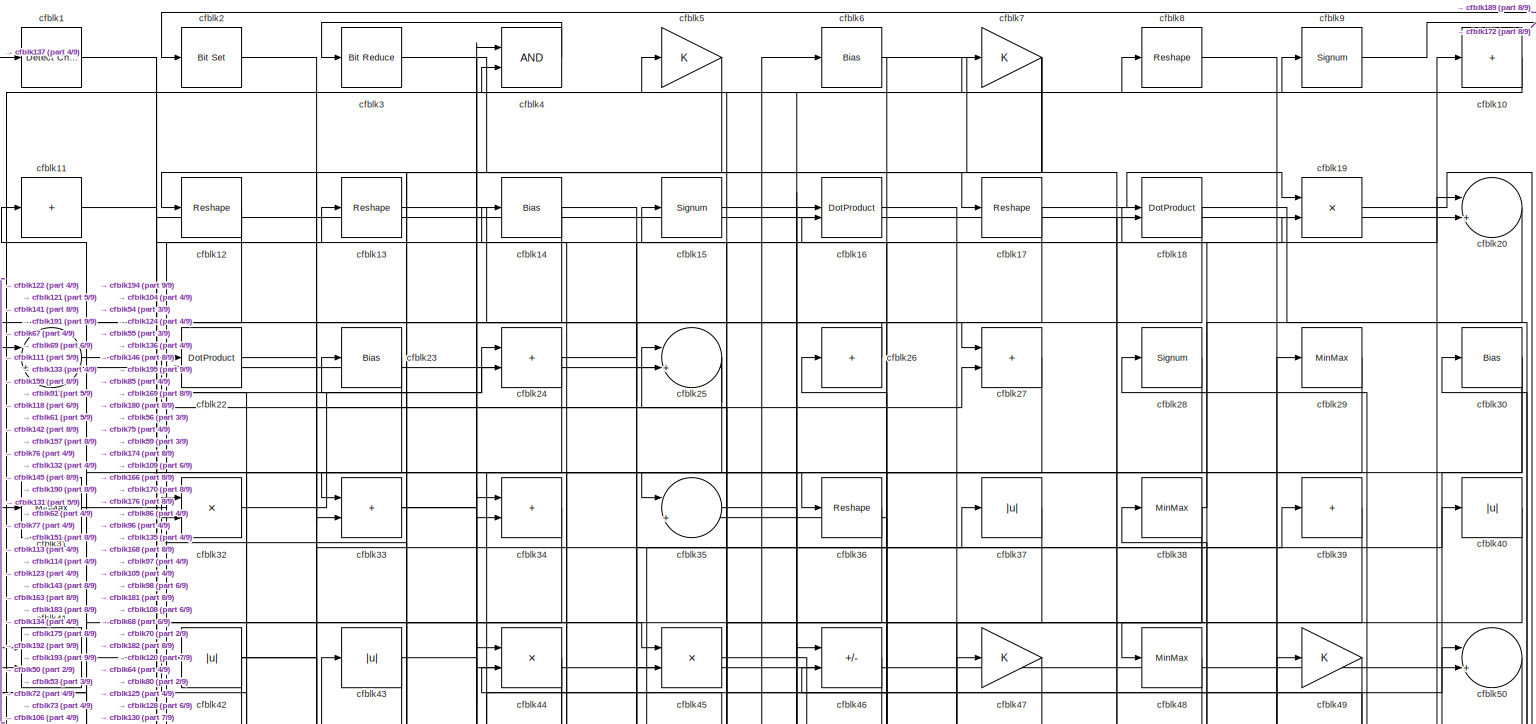
[diagram: root canvas - part 1/9, full width, top band]
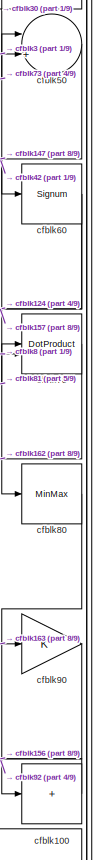
[diagram: root canvas - part 2/9, middle right region]
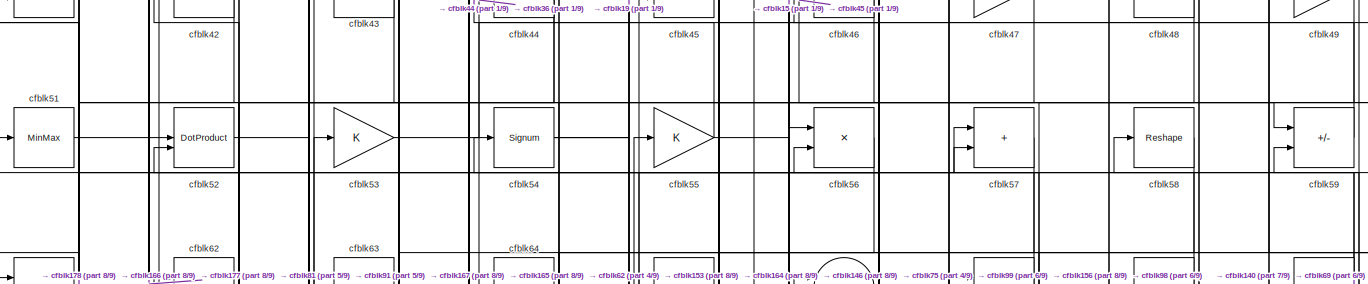
[diagram: root canvas - part 3/9, full width, top band]
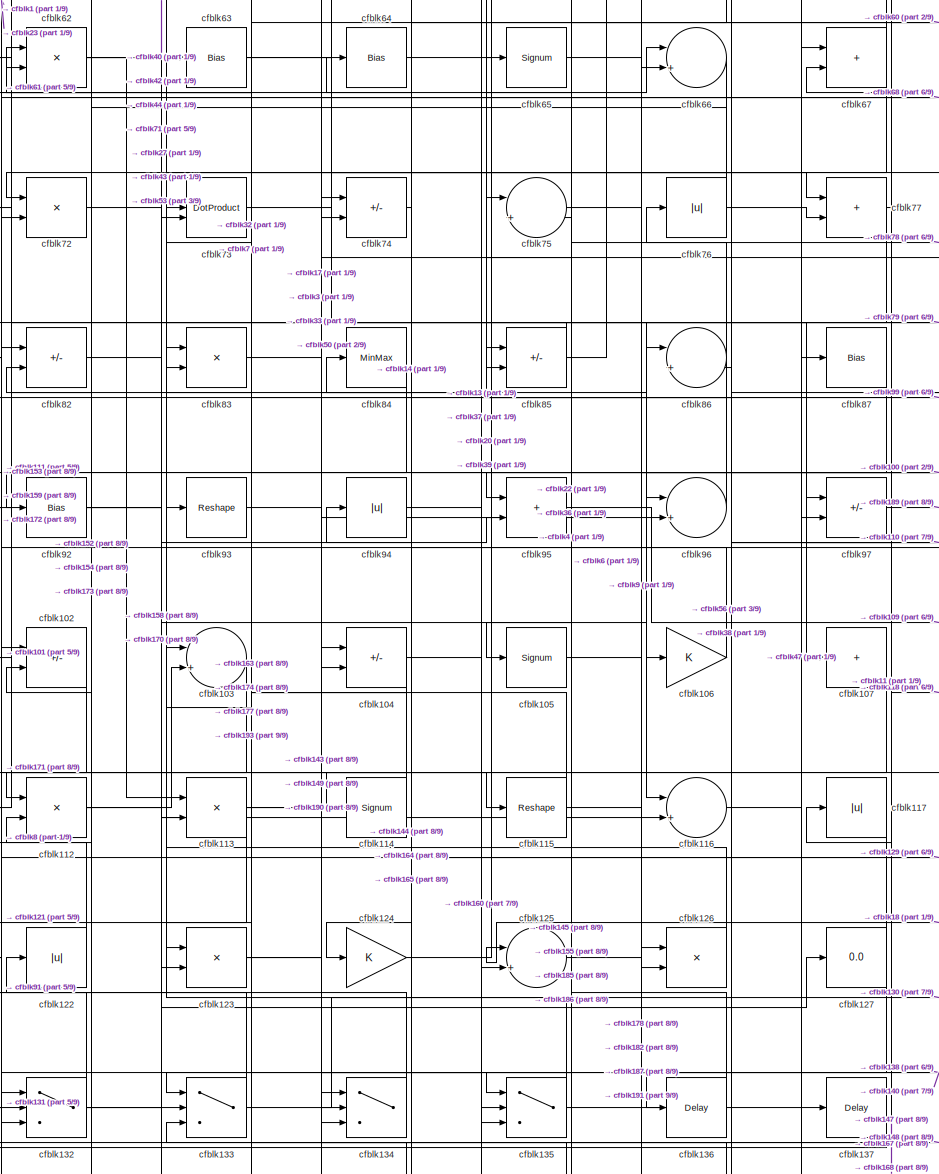
[diagram: root canvas - part 4/9, central region]
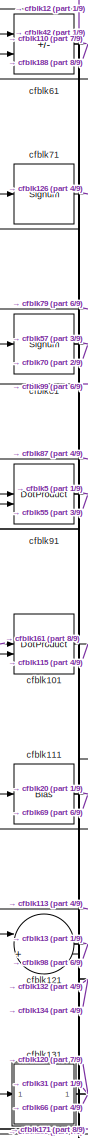
[diagram: root canvas - part 5/9, middle left region]
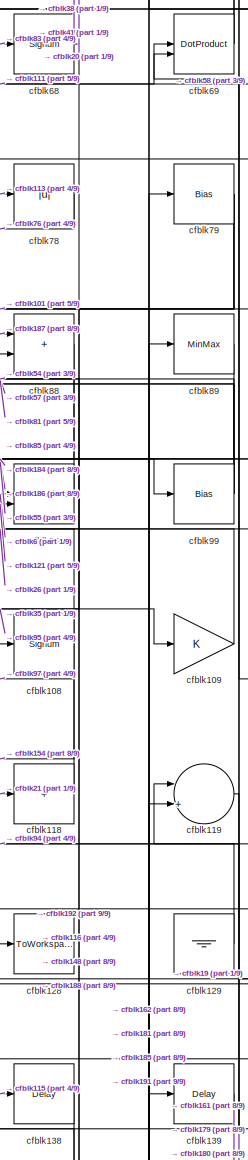
[diagram: root canvas - part 6/9, middle right region]
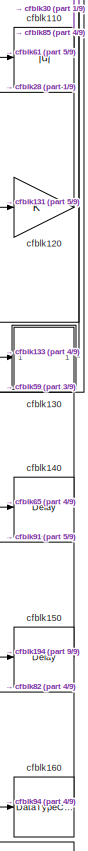
[diagram: root canvas - part 7/9, middle right region]
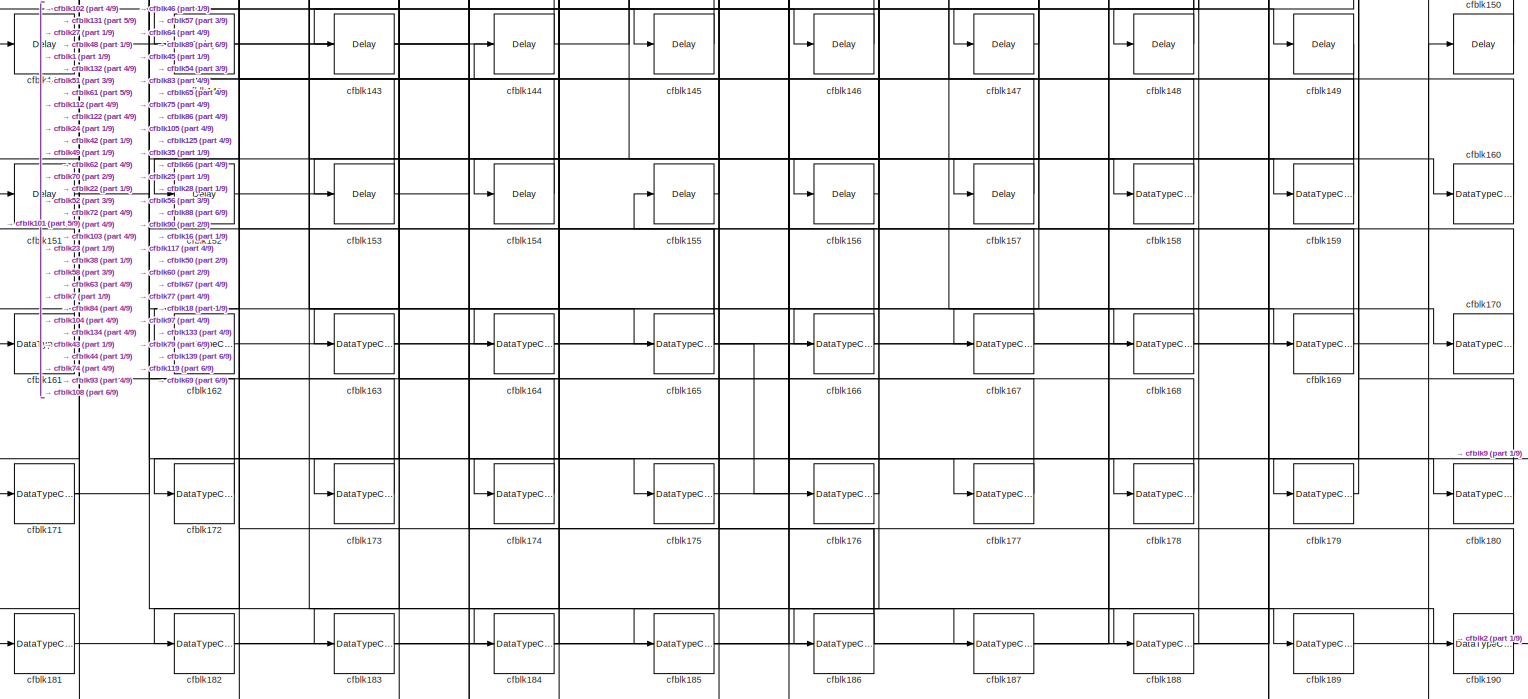
[diagram: root canvas - part 8/9, full width, bottom band]
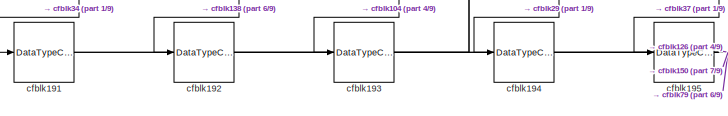
[diagram: root canvas - part 9/9, bottom left region]
MODEL slx_b00398de65a6
KIND model
CONFIG AbsTol = auto
CONFIG EnableMultiTasking = off
CONFIG FixedStep = auto
CONFIG MaxStep = auto
CONFIG MinStep = auto
CONFIG RelTol = 1e-3
CONFIG SampleTimeConstraint = Unconstrained
CONFIG SolverName = VariableStepAuto
CONFIG StartTime = 0.0
CONFIG StopTime = 10.0
BLOCK [Reference] cfblk1  REF=simulink/Logic and Bit
Operations/Detect
Change
  LibrarySourceBlock = hdlsllib/Logic and Bit\nOperations/Detect\nChange
  SourceBlock = simulink/Logic and Bit\nOperations/Detect\nChange
  SourceType = Detect Change
BLOCK [Sum] cfblk10
  IconShape = rectangular
  Inputs = +
BLOCK [Sum] cfblk100
  IconShape = rectangular
  Inputs = +
BLOCK [DotProduct] cfblk101
  OutDataTypeStr = Inherit: Inherit via internal rule
BLOCK [Sum] cfblk102
  IconShape = rectangular
  Inputs = +-
BLOCK [Sum] cfblk103
  Inputs = |++
BLOCK [Sum] cfblk104
  IconShape = rectangular
  Inputs = +-
BLOCK [Signum] cfblk105
BLOCK [Gain] cfblk106
BLOCK [Sum] cfblk107
  IconShape = rectangular
  Inputs = +
BLOCK [Signum] cfblk108
BLOCK [Gain] cfblk109
BLOCK [Sum] cfblk11
  IconShape = rectangular
  Inputs = +
BLOCK [Abs] cfblk110
  SaturateOnIntegerOverflow = off
BLOCK [Bias] cfblk111
  Bias = 0.0
  SaturateOnIntegerOverflow = off
BLOCK [Product] cfblk112
  Inputs = */
  RndMeth = Zero
  SaturateOnIntegerOverflow = on
BLOCK [Product] cfblk113
  Inputs = */
  RndMeth = Zero
  SaturateOnIntegerOverflow = on
BLOCK [Signum] cfblk114
BLOCK [Reshape] cfblk115
BLOCK [Sum] cfblk116
  Inputs = |++
BLOCK [Abs] cfblk117
  SaturateOnIntegerOverflow = off
BLOCK [Sum] cfblk118
  IconShape = rectangular
  Inputs = +
BLOCK [Sum] cfblk119
  Inputs = |++
BLOCK [Reshape] cfblk12
BLOCK [Gain] cfblk120
BLOCK [Sum] cfblk121
  Inputs = |++
BLOCK [Abs] cfblk122
  SaturateOnIntegerOverflow = off
BLOCK [Product] cfblk123
  Inputs = */
  RndMeth = Zero
  SaturateOnIntegerOverflow = on
BLOCK [Gain] cfblk124
BLOCK [Sum] cfblk125
  Inputs = |++
BLOCK [Product] cfblk126
  Inputs = */
  RndMeth = Zero
  SaturateOnIntegerOverflow = on
BLOCK [Display] cfblk127
  Decimation = 1
BLOCK [ToWorkspace] cfblk128
  MaxDataPoints = inf
  SampleTime = -1
  SaveFormat = Timeseries
  VariableName = simout
BLOCK [Ground] cfblk129
BLOCK [Reshape] cfblk13
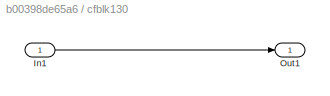
BLOCK [SubSystem] cfblk130
  LibrarySourceBlock = hdlsllib/Ports &\nSubsystems/Subsystem
BLOCK [Inport] cfblk130/In1
BLOCK [Outport] cfblk130/Out1
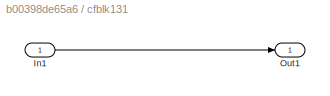
BLOCK [SubSystem] cfblk131
  LibrarySourceBlock = hdlsllib/Ports &\nSubsystems/Subsystem
BLOCK [Inport] cfblk131/In1
BLOCK [Outport] cfblk131/Out1
BLOCK [Switch] cfblk132
  InputSameDT = off
  SaturateOnIntegerOverflow = off
BLOCK [Switch] cfblk133
  InputSameDT = off
  SaturateOnIntegerOverflow = off
BLOCK [Switch] cfblk134
  InputSameDT = off
  SaturateOnIntegerOverflow = off
BLOCK [Switch] cfblk135
  InputSameDT = off
  SaturateOnIntegerOverflow = off
BLOCK [Delay] cfblk136
  InputPortMap = u0
  SampleTime = 1
BLOCK [Delay] cfblk137
  InputPortMap = u0
  SampleTime = 1
BLOCK [Delay] cfblk138
  InputPortMap = u0
  SampleTime = 1
BLOCK [Delay] cfblk139
  InputPortMap = u0
  SampleTime = 1
BLOCK [Bias] cfblk14
  Bias = 0.0
  SaturateOnIntegerOverflow = off
BLOCK [Delay] cfblk140
  InputPortMap = u0
  SampleTime = 1
BLOCK [Delay] cfblk141
  InputPortMap = u0
  SampleTime = 1
BLOCK [Delay] cfblk142
  InputPortMap = u0
  SampleTime = 1
BLOCK [Delay] cfblk143
  InputPortMap = u0
  SampleTime = 1
BLOCK [Delay] cfblk144
  InputPortMap = u0
  SampleTime = 1
BLOCK [Delay] cfblk145
  InputPortMap = u0
  SampleTime = 1
BLOCK [Delay] cfblk146
  InputPortMap = u0
  SampleTime = 1
BLOCK [Delay] cfblk147
  InputPortMap = u0
  SampleTime = 1
BLOCK [Delay] cfblk148
  InputPortMap = u0
  SampleTime = 1
BLOCK [Delay] cfblk149
  InputPortMap = u0
  SampleTime = 1
BLOCK [Signum] cfblk15
BLOCK [Delay] cfblk150
  InputPortMap = u0
  SampleTime = 1
BLOCK [Delay] cfblk151
  InputPortMap = u0
  SampleTime = 1
BLOCK [Delay] cfblk152
  InputPortMap = u0
  SampleTime = 1
BLOCK [Delay] cfblk153
  InputPortMap = u0
  SampleTime = 1
BLOCK [Delay] cfblk154
  InputPortMap = u0
  SampleTime = 1
BLOCK [Delay] cfblk155
  InputPortMap = u0
  SampleTime = 1
BLOCK [Delay] cfblk156
  InputPortMap = u0
  SampleTime = 1
BLOCK [Delay] cfblk157
  InputPortMap = u0
  SampleTime = 1
BLOCK [DataTypeConversion] cfblk158
  OutDataTypeStr = uint8
  RndMeth = Floor
  SaturateOnIntegerOverflow = off
BLOCK [DataTypeConversion] cfblk159
  OutDataTypeStr = uint8
  RndMeth = Floor
  SaturateOnIntegerOverflow = off
BLOCK [DotProduct] cfblk16
  OutDataTypeStr = Inherit: Inherit via internal rule
BLOCK [DataTypeConversion] cfblk160
  OutDataTypeStr = uint8
  RndMeth = Floor
  SaturateOnIntegerOverflow = off
BLOCK [DataTypeConversion] cfblk161
  OutDataTypeStr = uint8
  RndMeth = Floor
  SaturateOnIntegerOverflow = off
BLOCK [DataTypeConversion] cfblk162
  OutDataTypeStr = uint8
  RndMeth = Floor
  SaturateOnIntegerOverflow = off
BLOCK [DataTypeConversion] cfblk163
  RndMeth = Floor
  SaturateOnIntegerOverflow = off
BLOCK [DataTypeConversion] cfblk164
  OutDataTypeStr = uint8
  RndMeth = Floor
  SaturateOnIntegerOverflow = off
BLOCK [DataTypeConversion] cfblk165
  RndMeth = Floor
  SaturateOnIntegerOverflow = off
BLOCK [DataTypeConversion] cfblk166
  OutDataTypeStr = uint8
  RndMeth = Floor
  SaturateOnIntegerOverflow = off
BLOCK [DataTypeConversion] cfblk167
  OutDataTypeStr = uint8
  RndMeth = Floor
  SaturateOnIntegerOverflow = off
BLOCK [DataTypeConversion] cfblk168
  OutDataTypeStr = uint8
  RndMeth = Floor
  SaturateOnIntegerOverflow = off
BLOCK [DataTypeConversion] cfblk169
  OutDataTypeStr = uint8
  RndMeth = Floor
  SaturateOnIntegerOverflow = off
BLOCK [Reshape] cfblk17
BLOCK [DataTypeConversion] cfblk170
  OutDataTypeStr = uint8
  RndMeth = Floor
  SaturateOnIntegerOverflow = off
BLOCK [DataTypeConversion] cfblk171
  RndMeth = Floor
  SaturateOnIntegerOverflow = off
BLOCK [DataTypeConversion] cfblk172
  OutDataTypeStr = uint8
  RndMeth = Floor
  SaturateOnIntegerOverflow = off
BLOCK [DataTypeConversion] cfblk173
  OutDataTypeStr = uint8
  RndMeth = Floor
  SaturateOnIntegerOverflow = off
BLOCK [DataTypeConversion] cfblk174
  OutDataTypeStr = uint8
  RndMeth = Floor
  SaturateOnIntegerOverflow = off
BLOCK [DataTypeConversion] cfblk175
  OutDataTypeStr = uint8
  RndMeth = Floor
  SaturateOnIntegerOverflow = off
BLOCK [DataTypeConversion] cfblk176
  OutDataTypeStr = uint8
  RndMeth = Floor
  SaturateOnIntegerOverflow = off
BLOCK [DataTypeConversion] cfblk177
  OutDataTypeStr = uint8
  RndMeth = Floor
  SaturateOnIntegerOverflow = off
BLOCK [DataTypeConversion] cfblk178
  OutDataTypeStr = uint8
  RndMeth = Floor
  SaturateOnIntegerOverflow = off
BLOCK [DataTypeConversion] cfblk179
  OutDataTypeStr = uint8
  RndMeth = Floor
  SaturateOnIntegerOverflow = off
BLOCK [DotProduct] cfblk18
  OutDataTypeStr = Inherit: Inherit via internal rule
BLOCK [DataTypeConversion] cfblk180
  OutDataTypeStr = uint8
  RndMeth = Floor
  SaturateOnIntegerOverflow = off
BLOCK [DataTypeConversion] cfblk181
  OutDataTypeStr = uint8
  RndMeth = Floor
  SaturateOnIntegerOverflow = off
BLOCK [DataTypeConversion] cfblk182
  RndMeth = Floor
  SaturateOnIntegerOverflow = off
BLOCK [DataTypeConversion] cfblk183
  OutDataTypeStr = uint8
  RndMeth = Floor
  SaturateOnIntegerOverflow = off
BLOCK [DataTypeConversion] cfblk184
  OutDataTypeStr = uint8
  RndMeth = Floor
  SaturateOnIntegerOverflow = off
BLOCK [DataTypeConversion] cfblk185
  OutDataTypeStr = uint8
  RndMeth = Floor
  SaturateOnIntegerOverflow = off
BLOCK [DataTypeConversion] cfblk186
  RndMeth = Floor
  SaturateOnIntegerOverflow = off
BLOCK [DataTypeConversion] cfblk187
  OutDataTypeStr = uint8
  RndMeth = Floor
  SaturateOnIntegerOverflow = off
BLOCK [DataTypeConversion] cfblk188
  OutDataTypeStr = uint8
  RndMeth = Floor
  SaturateOnIntegerOverflow = off
BLOCK [DataTypeConversion] cfblk189
  OutDataTypeStr = boolean
  RndMeth = Floor
  SaturateOnIntegerOverflow = off
BLOCK [Product] cfblk19
  Inputs = */
  RndMeth = Zero
  SaturateOnIntegerOverflow = on
BLOCK [DataTypeConversion] cfblk190
  OutDataTypeStr = uint8
  RndMeth = Floor
  SaturateOnIntegerOverflow = off
BLOCK [DataTypeConversion] cfblk191
  RndMeth = Floor
  SaturateOnIntegerOverflow = off
BLOCK [DataTypeConversion] cfblk192
  OutDataTypeStr = uint8
  RndMeth = Floor
  SaturateOnIntegerOverflow = off
BLOCK [DataTypeConversion] cfblk193
  OutDataTypeStr = uint8
  RndMeth = Floor
  SaturateOnIntegerOverflow = off
BLOCK [DataTypeConversion] cfblk194
  OutDataTypeStr = uint8
  RndMeth = Floor
  SaturateOnIntegerOverflow = off
BLOCK [DataTypeConversion] cfblk195
  OutDataTypeStr = uint8
  RndMeth = Floor
  SaturateOnIntegerOverflow = off
BLOCK [Reference] cfblk2  REF=simulink/Logic and Bit
Operations/Bit Set
  LibrarySourceBlock = hdlsllib/Logic and Bit\nOperations/Bit Set
  SourceBlock = simulink/Logic and Bit\nOperations/Bit Set
  SourceType = Bit Set
BLOCK [Sum] cfblk20
  Inputs = |++
BLOCK [Sum] cfblk21
  Inputs = |++
BLOCK [DotProduct] cfblk22
  OutDataTypeStr = Inherit: Inherit via internal rule
BLOCK [Bias] cfblk23
  Bias = 0.0
  SaturateOnIntegerOverflow = off
BLOCK [Sum] cfblk24
  IconShape = rectangular
BLOCK [Sum] cfblk25
  Inputs = |++
BLOCK [Sum] cfblk26
  IconShape = rectangular
  Inputs = +
BLOCK [Sum] cfblk27
  IconShape = rectangular
BLOCK [Signum] cfblk28
BLOCK [MinMax] cfblk29
BLOCK [Reference] cfblk3  REF=hdlsllib/Logic and Bit
Operations/Bit Reduce
  SourceBlock = hdlsllib/Logic and Bit\nOperations/Bit Reduce
  SourceType = Bit Reduce
BLOCK [Bias] cfblk30
  Bias = 0.0
  SaturateOnIntegerOverflow = off
BLOCK [MinMax] cfblk31
BLOCK [Product] cfblk32
  Inputs = */
  RndMeth = Zero
  SaturateOnIntegerOverflow = on
BLOCK [Sum] cfblk33
  IconShape = rectangular
BLOCK [Sum] cfblk34
  IconShape = rectangular
BLOCK [Sum] cfblk35
  Inputs = |++
BLOCK [Reshape] cfblk36
BLOCK [Abs] cfblk37
  SaturateOnIntegerOverflow = off
BLOCK [MinMax] cfblk38
BLOCK [Sum] cfblk39
  IconShape = rectangular
  Inputs = +
BLOCK [Logic] cfblk4
  AllPortsSameDT = off
  OutDataTypeStr = boolean
BLOCK [Abs] cfblk40
  SaturateOnIntegerOverflow = off
BLOCK [Sum] cfblk41
  IconShape = rectangular
BLOCK [Abs] cfblk42
  SaturateOnIntegerOverflow = off
BLOCK [Abs] cfblk43
  SaturateOnIntegerOverflow = off
BLOCK [Product] cfblk44
  Inputs = */
  RndMeth = Zero
  SaturateOnIntegerOverflow = on
BLOCK [Product] cfblk45
  Inputs = */
  RndMeth = Zero
  SaturateOnIntegerOverflow = on
BLOCK [Sum] cfblk46
  IconShape = rectangular
  Inputs = +-
BLOCK [Gain] cfblk47
BLOCK [MinMax] cfblk48
BLOCK [Gain] cfblk49
BLOCK [Gain] cfblk5
BLOCK [Sum] cfblk50
  Inputs = |++
BLOCK [MinMax] cfblk51
BLOCK [DotProduct] cfblk52
  OutDataTypeStr = Inherit: Inherit via internal rule
BLOCK [Gain] cfblk53
BLOCK [Signum] cfblk54
BLOCK [Gain] cfblk55
BLOCK [Product] cfblk56
  Inputs = */
  RndMeth = Zero
  SaturateOnIntegerOverflow = on
BLOCK [Sum] cfblk57
  IconShape = rectangular
BLOCK [Reshape] cfblk58
BLOCK [Sum] cfblk59
  IconShape = rectangular
  Inputs = +-
BLOCK [Bias] cfblk6
  Bias = 0.0
  SaturateOnIntegerOverflow = off
BLOCK [Signum] cfblk60
BLOCK [Sum] cfblk61
  IconShape = rectangular
  Inputs = +-
BLOCK [Product] cfblk62
  Inputs = */
  RndMeth = Zero
  SaturateOnIntegerOverflow = on
BLOCK [Bias] cfblk63
  Bias = 0.0
  SaturateOnIntegerOverflow = off
BLOCK [Bias] cfblk64
  Bias = 0.0
  SaturateOnIntegerOverflow = off
BLOCK [Signum] cfblk65
BLOCK [Sum] cfblk66
  Inputs = |++
BLOCK [Sum] cfblk67
  IconShape = rectangular
BLOCK [Signum] cfblk68
BLOCK [DotProduct] cfblk69
  OutDataTypeStr = Inherit: Inherit via internal rule
BLOCK [Gain] cfblk7
BLOCK [DotProduct] cfblk70
  OutDataTypeStr = Inherit: Inherit via internal rule
BLOCK [Signum] cfblk71
BLOCK [Product] cfblk72
  Inputs = */
  RndMeth = Zero
  SaturateOnIntegerOverflow = on
BLOCK [DotProduct] cfblk73
  OutDataTypeStr = Inherit: Inherit via internal rule
BLOCK [Sum] cfblk74
  IconShape = rectangular
  Inputs = +-
BLOCK [Sum] cfblk75
  Inputs = |++
BLOCK [Abs] cfblk76
  SaturateOnIntegerOverflow = off
BLOCK [Sum] cfblk77
  IconShape = rectangular
BLOCK [Abs] cfblk78
  SaturateOnIntegerOverflow = off
BLOCK [Bias] cfblk79
  Bias = 0.0
  SaturateOnIntegerOverflow = off
BLOCK [Reshape] cfblk8
BLOCK [MinMax] cfblk80
BLOCK [Signum] cfblk81
BLOCK [Sum] cfblk82
  IconShape = rectangular
  Inputs = +-
BLOCK [Product] cfblk83
  Inputs = */
  RndMeth = Zero
  SaturateOnIntegerOverflow = on
BLOCK [MinMax] cfblk84
BLOCK [Sum] cfblk85
  IconShape = rectangular
  Inputs = +-
BLOCK [Sum] cfblk86
  Inputs = |++
BLOCK [Bias] cfblk87
  Bias = 0.0
  SaturateOnIntegerOverflow = off
BLOCK [Sum] cfblk88
  IconShape = rectangular
BLOCK [MinMax] cfblk89
BLOCK [Signum] cfblk9
BLOCK [Gain] cfblk90
BLOCK [DotProduct] cfblk91
  OutDataTypeStr = Inherit: Inherit via internal rule
BLOCK [Bias] cfblk92
  Bias = 0.0
  SaturateOnIntegerOverflow = off
BLOCK [Reshape] cfblk93
BLOCK [Abs] cfblk94
  SaturateOnIntegerOverflow = off
BLOCK [Sum] cfblk95
  IconShape = rectangular
BLOCK [Sum] cfblk96
  Inputs = |++
BLOCK [Sum] cfblk97
  IconShape = rectangular
  Inputs = +-
BLOCK [DotProduct] cfblk98
  OutDataTypeStr = Inherit: Inherit via internal rule
BLOCK [Bias] cfblk99
  Bias = 0.0
  SaturateOnIntegerOverflow = off
LINE cfblk100:1 -> cfblk92:1
LINE cfblk101:1 -> cfblk115:1
LINE cfblk102:1 -> cfblk171:1
LINE cfblk103:1 -> cfblk132:3
NET cfblk104:1 -> cfblk193:1, cfblk37:1
LINE cfblk105:1 -> cfblk178:1
LINE cfblk106:1 -> cfblk14:1
LINE cfblk107:1 -> cfblk112:1
NET cfblk108:1 -> cfblk154:1, cfblk35:2
LINE cfblk109:1 -> cfblk26:1
LINE cfblk10:1 -> cfblk4:2
LINE cfblk110:1 -> cfblk85:1
NET cfblk111:1 -> cfblk20:2, cfblk69:1
NET cfblk112:1 -> cfblk103:2, cfblk152:1, cfblk95:2
NET cfblk113:1 -> cfblk121:2, cfblk78:1, cfblk96:2
NET cfblk114:1 -> cfblk32:1, cfblk62:1
NET cfblk115:1 -> cfblk138:1, cfblk61:2
LINE cfblk116:1 -> cfblk137:1
LINE cfblk117:1 -> cfblk133:1
LINE cfblk118:1 -> cfblk97:1
LINE cfblk119:1 -> cfblk179:1
LINE cfblk11:1 -> cfblk45:1
LINE cfblk120:1 -> cfblk28:1
NET cfblk121:1 -> cfblk13:1, cfblk98:2
LINE cfblk122:1 -> cfblk8:1
NET cfblk123:1 -> cfblk104:2, cfblk86:1
LINE cfblk124:1 -> cfblk39:1
LINE cfblk125:1 -> cfblk187:1
LINE cfblk126:1 -> cfblk93:1
LINE cfblk129:1 -> cfblk94:1
LINE cfblk12:1 -> cfblk121:1
LINE cfblk130/In1:1 -> cfblk130/Out1:1
LINE cfblk130:1 -> cfblk30:1
LINE cfblk131/In1:1 -> cfblk131/Out1:1
NET cfblk131:1 -> cfblk120:1, cfblk31:1, cfblk66:1
NET cfblk132:1 -> cfblk127:1, cfblk40:1, cfblk71:1
NET cfblk133:1 -> cfblk112:2, cfblk130:1
LINE cfblk134:1 -> cfblk91:1
NET cfblk135:1 -> cfblk43:1, cfblk47:1
LINE cfblk136:1 -> cfblk4:1
LINE cfblk137:1 -> cfblk1:1
LINE cfblk138:1 -> cfblk192:1
LINE cfblk139:1 -> cfblk161:1
LINE cfblk13:1 -> cfblk125:2
LINE cfblk140:1 -> cfblk59:2
LINE cfblk141:1 -> cfblk44:1
LINE cfblk142:1 -> cfblk45:2
LINE cfblk143:1 -> cfblk134:2
LINE cfblk144:1 -> cfblk134:1
LINE cfblk145:1 -> cfblk83:2
LINE cfblk146:1 -> cfblk25:1
LINE cfblk147:1 -> cfblk67:2
LINE cfblk148:1 -> cfblk133:3
LINE cfblk149:1 -> cfblk173:1
NET cfblk14:1 -> cfblk25:2, cfblk33:2
LINE cfblk150:1 -> cfblk91:2
LINE cfblk151:1 -> cfblk169:1
LINE cfblk152:1 -> cfblk74:1
LINE cfblk153:1 -> cfblk132:1
LINE cfblk154:1 -> cfblk62:2
LINE cfblk155:1 -> cfblk75:1
LINE cfblk156:1 -> cfblk56:2
LINE cfblk157:1 -> cfblk42:1
LINE cfblk158:1 -> cfblk67:1
LINE cfblk159:1 -> cfblk82:1
LINE cfblk15:1 -> cfblk56:1
LINE cfblk160:1 -> cfblk82:2
LINE cfblk161:1 -> cfblk101:1
LINE cfblk162:1 -> cfblk139:1
NET cfblk163:1 -> cfblk23:1, cfblk90:1
LINE cfblk164:1 -> cfblk84:1
NET cfblk165:1 -> cfblk155:1, cfblk176:1, cfblk64:1
LINE cfblk166:1 -> cfblk52:1
LINE cfblk167:1 -> cfblk52:2
LINE cfblk168:1 -> cfblk117:1
LINE cfblk169:1 -> cfblk16:1
LINE cfblk16:1 -> cfblk168:1
LINE cfblk170:1 -> cfblk16:2
NET cfblk171:1 -> cfblk131:1, cfblk72:2
LINE cfblk172:1 -> cfblk102:1
LINE cfblk173:1 -> cfblk102:2
LINE cfblk174:1 -> cfblk63:1
LINE cfblk175:1 -> cfblk46:1
LINE cfblk176:1 -> cfblk46:2
LINE cfblk177:1 -> cfblk103:1
LINE cfblk178:1 -> cfblk51:1
LINE cfblk179:1 -> cfblk69:2
NET cfblk17:1 -> cfblk134:3, cfblk19:1
LINE cfblk180:1 -> cfblk119:1
LINE cfblk181:1 -> cfblk119:2
NET cfblk182:1 -> cfblk18:2, cfblk66:2
LINE cfblk183:1 -> cfblk49:1
LINE cfblk184:1 -> cfblk144:1
LINE cfblk185:1 -> cfblk89:1
NET cfblk186:1 -> cfblk122:1, cfblk65:1
LINE cfblk187:1 -> cfblk88:1
LINE cfblk188:1 -> cfblk88:2
LINE cfblk189:1 -> cfblk2:1
NET cfblk18:1 -> cfblk125:1, cfblk32:2
LINE cfblk190:1 -> cfblk104:1
NET cfblk191:1 -> cfblk126:2, cfblk79:1
LINE cfblk192:1 -> cfblk34:1
LINE cfblk193:1 -> cfblk34:2
LINE cfblk194:1 -> cfblk150:1
LINE cfblk195:1 -> cfblk29:1
LINE cfblk19:1 -> cfblk128:1
NET cfblk1:1 -> cfblk133:2, cfblk159:1
LINE cfblk20:1 -> cfblk108:1
LINE cfblk21:1 -> cfblk118:1
LINE cfblk22:1 -> cfblk145:1
LINE cfblk23:1 -> cfblk132:2
NET cfblk24:1 -> cfblk142:1, cfblk27:1
NET cfblk25:1 -> cfblk21:2, cfblk33:1
LINE cfblk26:1 -> cfblk21:1
LINE cfblk27:1 -> cfblk141:1
LINE cfblk28:1 -> cfblk166:1
LINE cfblk29:1 -> cfblk194:1
LINE cfblk2:1 -> cfblk190:1
NET cfblk30:1 -> cfblk35:1, cfblk80:1
LINE cfblk31:1 -> cfblk10:1
LINE cfblk32:1 -> cfblk24:1
NET cfblk33:1 -> cfblk135:3, cfblk7:1
LINE cfblk34:1 -> cfblk191:1
LINE cfblk35:1 -> cfblk180:1
LINE cfblk36:1 -> cfblk135:1
LINE cfblk37:1 -> cfblk195:1
NET cfblk38:1 -> cfblk143:1, cfblk18:1, cfblk86:2
LINE cfblk39:1 -> cfblk97:2
NET cfblk3:1 -> cfblk135:2, cfblk17:1, cfblk50:2
LINE cfblk40:1 -> cfblk48:1
LINE cfblk41:1 -> cfblk24:2
NET cfblk42:1 -> cfblk60:1, cfblk61:1, cfblk77:1
NET cfblk43:1 -> cfblk151:1, cfblk175:1
NET cfblk44:1 -> cfblk72:1, cfblk73:2
LINE cfblk45:1 -> cfblk59:1
LINE cfblk46:1 -> cfblk174:1
LINE cfblk47:1 -> cfblk105:1
LINE cfblk48:1 -> cfblk181:1
LINE cfblk49:1 -> cfblk182:1
LINE cfblk4:1 -> cfblk3:1
LINE cfblk50:1 -> cfblk147:1
LINE cfblk51:1 -> cfblk177:1
LINE cfblk52:1 -> cfblk165:1
LINE cfblk53:1 -> cfblk36:1
NET cfblk54:1 -> cfblk146:1, cfblk19:2
NET cfblk55:1 -> cfblk44:2, cfblk99:1
LINE cfblk56:1 -> cfblk75:2
LINE cfblk57:1 -> cfblk164:1
LINE cfblk58:1 -> cfblk153:1
LINE cfblk59:1 -> cfblk15:1
LINE cfblk5:1 -> cfblk12:1
NET cfblk60:1 -> cfblk124:1, cfblk157:1
NET cfblk61:1 -> cfblk110:1, cfblk188:1
NET cfblk62:1 -> cfblk113:1, cfblk27:2, cfblk53:1
NET cfblk63:1 -> cfblk107:1, cfblk87:1
LINE cfblk64:1 -> cfblk20:1
LINE cfblk65:1 -> cfblk140:1
LINE cfblk66:1 -> cfblk74:2
NET cfblk67:1 -> cfblk11:1, cfblk123:2
NET cfblk68:1 -> cfblk38:1, cfblk41:1
NET cfblk69:1 -> cfblk41:2, cfblk58:1
NET cfblk6:1 -> cfblk96:1, cfblk98:1
LINE cfblk70:1 -> cfblk162:1
LINE cfblk71:1 -> cfblk126:1
LINE cfblk72:1 -> cfblk170:1
LINE cfblk73:1 -> cfblk50:1
LINE cfblk74:1 -> cfblk114:1
LINE cfblk75:1 -> cfblk9:1
NET cfblk76:1 -> cfblk22:2, cfblk77:2
NET cfblk77:1 -> cfblk167:1, cfblk95:1
LINE cfblk78:1 -> cfblk76:1
NET cfblk79:1 -> cfblk101:2, cfblk116:1, cfblk148:1
NET cfblk7:1 -> cfblk113:2, cfblk123:1, cfblk183:1
LINE cfblk80:1 -> cfblk100:1
NET cfblk81:1 -> cfblk57:2, cfblk70:1
LINE cfblk82:1 -> cfblk158:1
LINE cfblk83:1 -> cfblk68:1
LINE cfblk84:1 -> cfblk163:1
NET cfblk85:1 -> cfblk6:1, cfblk83:1
NET cfblk86:1 -> cfblk185:1, cfblk22:1
LINE cfblk87:1 -> cfblk111:1
LINE cfblk88:1 -> cfblk186:1
LINE cfblk89:1 -> cfblk184:1
LINE cfblk8:1 -> cfblk70:2
LINE cfblk90:1 -> cfblk156:1
NET cfblk91:1 -> cfblk55:1, cfblk5:1
NET cfblk92:1 -> cfblk106:1, cfblk116:2, cfblk136:1
LINE cfblk93:1 -> cfblk149:1
LINE cfblk94:1 -> cfblk160:1
LINE cfblk95:1 -> cfblk109:1
LINE cfblk96:1 -> cfblk73:1
LINE cfblk97:1 -> cfblk189:1
LINE cfblk98:1 -> cfblk54:1
NET cfblk99:1 -> cfblk57:1, cfblk81:1, cfblk85:2
LINE cfblk9:1 -> cfblk172:1
note: NET lines group one-source signal fan-out (src -> all destinations, sorted); 1:1 wires keep LINE
